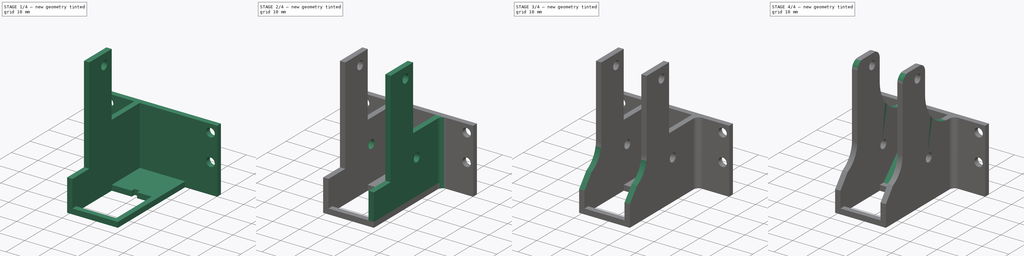
[diagram: build sequence overview — one tinted view per stage of 4, left to right]
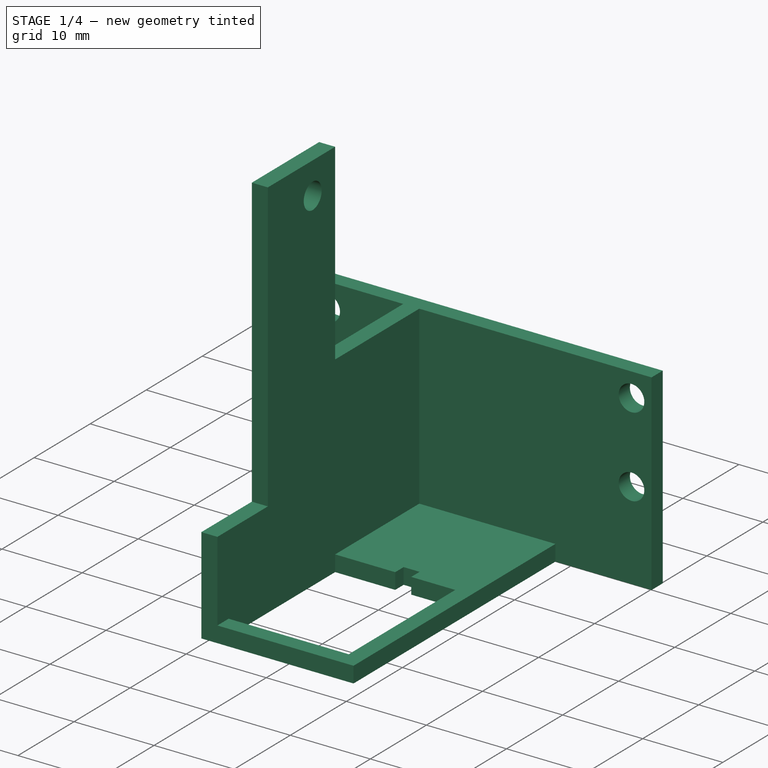
[diagram: stage 1 of 4 — iso view after this stage's code; geometry added in this stage tinted green]
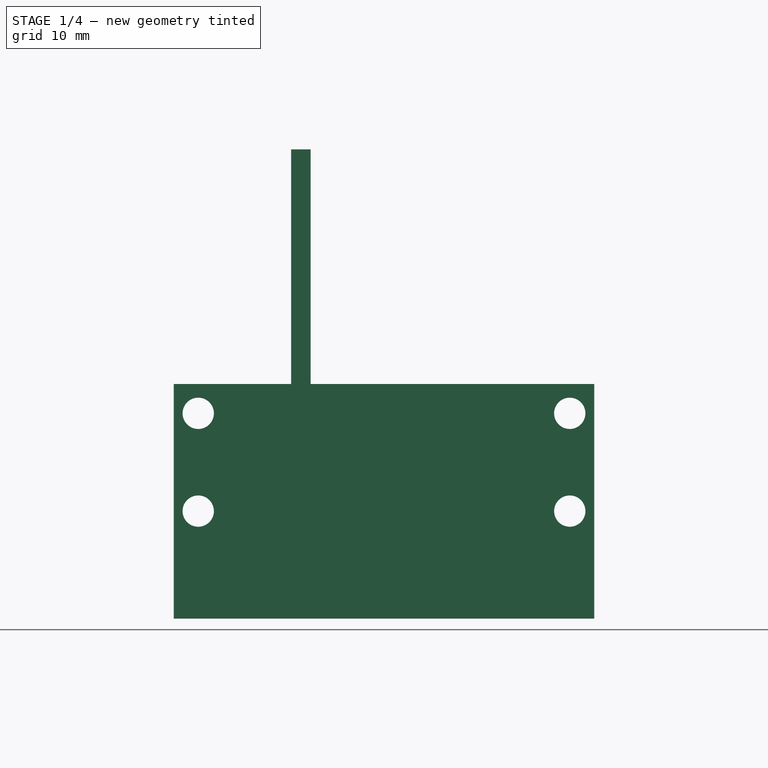
[diagram: stage 1 of 4 — front view after this stage's code; geometry added in this stage tinted green]
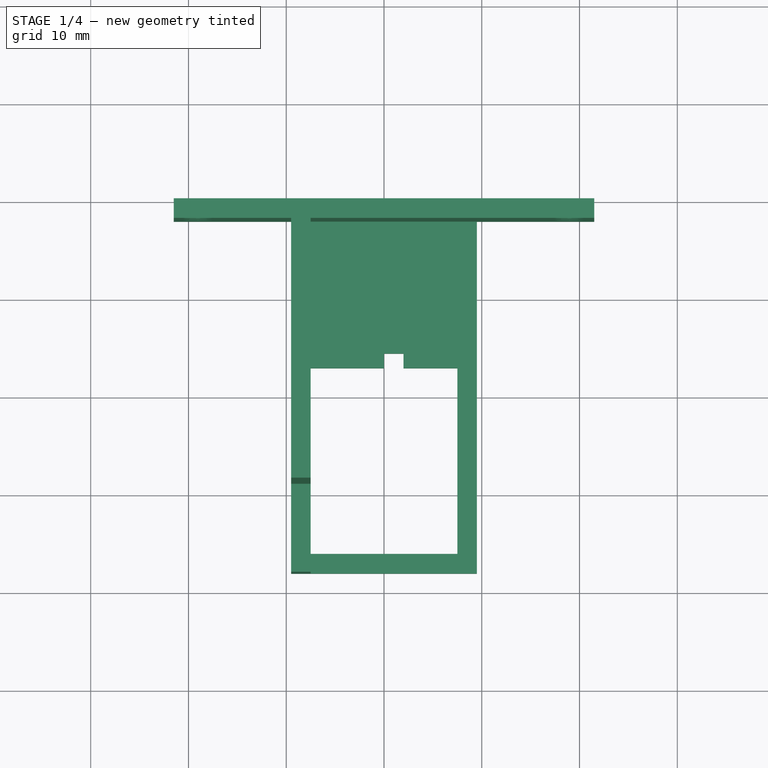
[diagram: stage 1 of 4 — top view after this stage's code; geometry added in this stage tinted green]
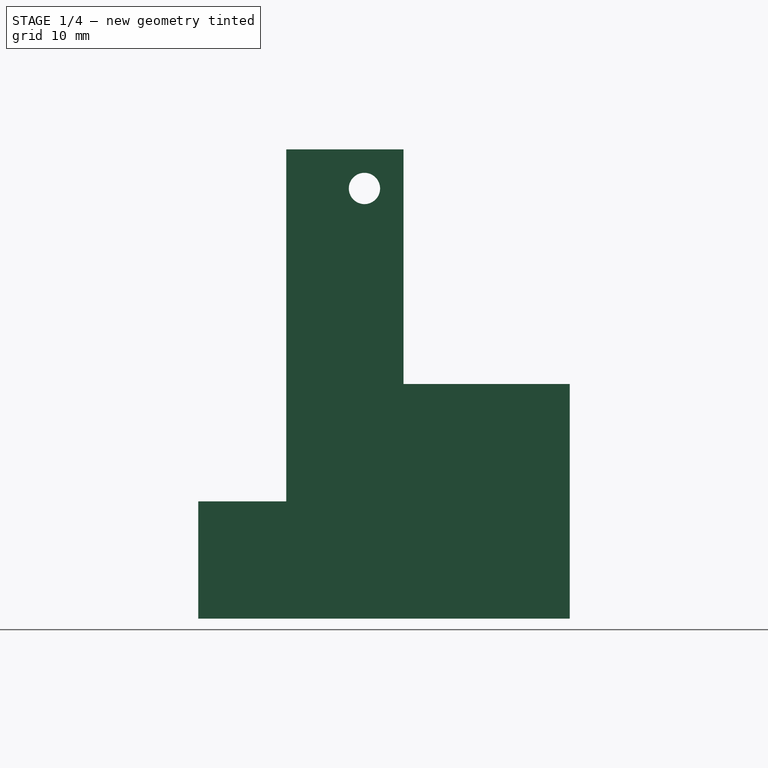
[diagram: stage 1 of 4 — right view after this stage's code; geometry added in this stage tinted green]
FCSTD DOCUMENT  (FreeCAD 0.18R14090 (Git))
Label: HotendClippingExtraFanTurbine
License: All rights reserved
LicenseURL: http://en.wikipedia.org/wiki/All_rights_reserved
objects: Sketcher::SketchObject×5, PartDesign::Pad×4, PartDesign::Fillet×4, PartDesign::Plane×2, PartDesign::Chamfer×2, PartDesign::Pocket×1, PartDesign::Body×1, App::Part×1
note: 24 computed .brp shape members not serialized (recipe doc carries the construction recipe); baked Part::Feature solids carry a one-line shape summary decoded from their .brp

FEATURE [Sketcher::SketchObject] Sketch  label="ClippingBaseSketch"
  MapMode = 5
  Placement = pos=(0,0,0) rot=(1,0,0;1.5708rad)
  Support = -> [XZ_Plane001]
  sketch-geometry (9):
    g0: LineSegment StartX=-21.5 StartY=0 StartZ=0 EndX=21.5 EndY=0 EndZ=0
    g1: LineSegment StartX=21.5 StartY=0 StartZ=0 EndX=21.5 EndY=24 EndZ=0
    g2: LineSegment StartX=21.5 StartY=24 StartZ=0 EndX=-21.5 EndY=24 EndZ=0
    g3: LineSegment StartX=-21.5 StartY=24 StartZ=0 EndX=-21.5 EndY=0 EndZ=0
    g4: Circle CenterX=-19 CenterY=21 CenterZ=0 NormalX=0 NormalY=0 NormalZ=1 AngleXU=0 Radius=1.6
    g5: Circle CenterX=-19 CenterY=11 CenterZ=0 NormalX=0 NormalY=0 NormalZ=1 AngleXU=0 Radius=1.6
    g6: Circle CenterX=19 CenterY=11 CenterZ=0 NormalX=0 NormalY=0 NormalZ=1 AngleXU=0 Radius=1.6
    g7: Circle CenterX=19 CenterY=21 CenterZ=0 NormalX=0 NormalY=0 NormalZ=1 AngleXU=0 Radius=1.6
    g8: LineSegment [constr] StartX=-19 StartY=21 StartZ=0 EndX=-19 EndY=11 EndZ=0
  constraints (23):
    c: Coincident(g0,g1)
    c: Coincident(g1,g2)
    c: Coincident(g2,g3)
    c: Coincident(g3,g0)
    c: Horizontal(g2)
    c: Vertical(g1)
    c: Vertical(g3)
    c: PointOnObject(g0,g-1)
    c: Symmetric(g0,g0,g-2)
    c: Distance(g2) = 43
    c: Distance(g3) = 24
    c: Equal(g4,g7)
    c: Equal(g7,g5)
    c: Equal(g5,g6)
    c: Radius(g4) = 1.6
    c: Coincident(g8,g4)
    c: Coincident(g8,g5)
    c: Vertical(g8)
    c: Distance(g8) = 10
    c: Symmetric(g5,g6,g-2)
    c: Symmetric(g4,g7,g-2)
    c: Distance(g4,g7) = 38
    c: Distance(g4,g2) = 3
FEATURE [PartDesign::Pad] Pad  label="ClippingBasePad"
  Length = 2
  Length2 = 100
  Placement = pos=(0,0,0) rot=(1,0,0;1.5708rad)
  Profile = -> Sketch
  Type = 0
FEATURE [Sketcher::SketchObject] Sketch001  label="TurbineClippingSketch"
  MapMode = 5
  Support = -> [XY_Plane001]
  sketch-geometry (12):
    g0: LineSegment StartX=-9.5 StartY=0 StartZ=0 EndX=9.5 EndY=0 EndZ=0
    g1: LineSegment StartX=9.5 StartY=0 StartZ=0 EndX=9.5 EndY=-38 EndZ=0
    g2: LineSegment StartX=-9.5 StartY=-38 StartZ=0 EndX=-9.5 EndY=0 EndZ=0
    g3: LineSegment StartX=-9.5 StartY=-38 StartZ=0 EndX=9.5 EndY=-38 EndZ=0
    g4: LineSegment StartX=7.5 StartY=-17 StartZ=0 EndX=7.5 EndY=-36 EndZ=0
    g5: LineSegment StartX=7.5 StartY=-36 StartZ=0 EndX=-7.5 EndY=-36 EndZ=0
    g6: LineSegment StartX=-7.5 StartY=-36 StartZ=0 EndX=-7.5 EndY=-17 EndZ=0
    g7: LineSegment StartX=0 StartY=-17 StartZ=0 EndX=0 EndY=-15.5 EndZ=0
    g8: LineSegment StartX=0 StartY=-15.5 StartZ=0 EndX=2 EndY=-15.5 EndZ=0
    g9: LineSegment StartX=2 StartY=-15.5 StartZ=0 EndX=2 EndY=-17 EndZ=0
    g10: LineSegment StartX=2 StartY=-17 StartZ=0 EndX=7.5 EndY=-17 EndZ=0
    g11: LineSegment StartX=0 StartY=-17 StartZ=0 EndX=-7.5 EndY=-17 EndZ=0
  constraints (34):
    c: Coincident(g0,g1)
    c: Coincident(g2,g0)
    c: Vertical(g1)
    c: Vertical(g2)
    c: PointOnObject(g0,g-1)
    c: Symmetric(g0,g0,g-2)
    c: Distance(g2) = 38
    c: Coincident(g3,g2)
    c: Coincident(g3,g1)
    c: Horizontal(g3)
    c: Distance(g3) = 19
    c: Coincident(g4,g5)
    c: Coincident(g5,g6)
    c: Vertical(g4)
    c: Vertical(g6)
    c: Distance(g5,g3) = 2
    c: Symmetric(g5,g4,g-2)
    c: Distance(g6,g2) = 2
    c: Distance(g4) = 19
    c: Vertical(g7)
    c: Coincident(g8,g7)
    c: Horizontal(g8)
    c: Coincident(g9,g8)
    c: Vertical(g9)
    c: Coincident(g10,g9)
    c: Coincident(g10,g4)
    c: Horizontal(g10)
    c: Coincident(g11,g7)
    c: Coincident(g11,g6)
    c: Horizontal(g11)
    c: Equal(g9,g7)
    c: Distance(g8) = 2
    c: Distance(g7) = 1.5
    c: Distance(g11) = 7.5
FEATURE [PartDesign::Pad] Pad001  label="TurbineClippingPad"
  BaseFeature = -> Pad
  Length = 2
  Length2 = 100
  Placement = pos=(0,0,0) rot=(1,0,0;1.5708rad)
  Profile = -> Sketch001
  Type = 0
FEATURE [PartDesign::Plane] DatumPlane  label="Wall1Plane"
  AttachmentOffset = pos=(0,0,-9.5) rot=(0,0,1;0rad)
  MapMode = 5
  Placement = pos=(-9.5,1e-12,-1e-12) rot=(0.57735,0.57735,0.57735;2.0944rad)
  Support = -> [YZ_Plane001]
FEATURE [PartDesign::Plane] DatumPlane001  label="Wall2Plane"
  AttachmentOffset = pos=(0,0,9.5) rot=(0,0,1;0rad)
  MapMode = 5
  Placement = pos=(9.5,-1e-12,1e-12) rot=(0.57735,0.57735,0.57735;2.0944rad)
  Support = -> [YZ_Plane001]
FEATURE [Sketcher::SketchObject] Sketch002  label="Wall1Sketch"
  ExternalGeometry = -> [Sketch001,Sketch]
  MapMode = 5
  Placement = pos=(-9.5,1e-12,-1e-12) rot=(0.57735,0.57735,0.57735;2.0944rad)
  Support = -> [DatumPlane]
  sketch-geometry (9):
    g0: LineSegment StartX=-8e-12 StartY=24 StartZ=0 EndX=-8e-12 EndY=-3e-12 EndZ=0
    g1: LineSegment StartX=-8e-12 StartY=-3e-12 StartZ=0 EndX=-38 EndY=-3e-12 EndZ=0
    g2: LineSegment StartX=-38 StartY=-3e-12 StartZ=0 EndX=-38 EndY=12 EndZ=0
    g3: LineSegment StartX=-38 StartY=12 StartZ=0 EndX=-29 EndY=12 EndZ=0
    g4: LineSegment StartX=-29 StartY=12 StartZ=0 EndX=-29 EndY=48 EndZ=0
    g5: Circle CenterX=-21 CenterY=44 CenterZ=0 NormalX=0 NormalY=0 NormalZ=1 AngleXU=0 Radius=1.6
    g6: LineSegment StartX=-29 StartY=48 StartZ=0 EndX=-17 EndY=48 EndZ=0
    g7: LineSegment StartX=-17 StartY=48 StartZ=0 EndX=-17 EndY=24 EndZ=0
    g8: LineSegment StartX=-17 StartY=24 StartZ=0 EndX=-8e-12 EndY=24 EndZ=0
  constraints (25):
    c: Coincident(g0,g1)
    c: Coincident(g1,g2)
    c: Horizontal(g1)
    c: Vertical(g0)
    c: Vertical(g2)
    c: Coincident(g1,g-3)
    c: Coincident(g3,g2)
    c: Horizontal(g3)
    c: Coincident(g4,g3)
    c: Vertical(g4)
    c: Coincident(g0,g-4)
    c: Distance(g5,g1) = 44
    c: Radius(g5) = 1.6
    c: DistanceX(g5,g-5) = 4
    c: Coincident(g6,g4)
    c: Horizontal(g6)
    c: Coincident(g7,g6)
    c: Vertical(g7)
    c: Coincident(g8,g7)
    c: Coincident(g8,g0)
    c: Horizontal(g8)
    c: Distance(g2) = 12
    c: Distance(g-5,g4) = 12
    c: Distance(g4,g1) = 48
    c: Distance(g8) = 17
FEATURE [PartDesign::Pad] Pad002  label="Wall1Pad"
  BaseFeature = -> Pad001
  Length = 2
  Length2 = 100
  Placement = pos=(0,0,0) rot=(1,0,0;1.5708rad)
  Profile = -> Sketch002
  Type = 0
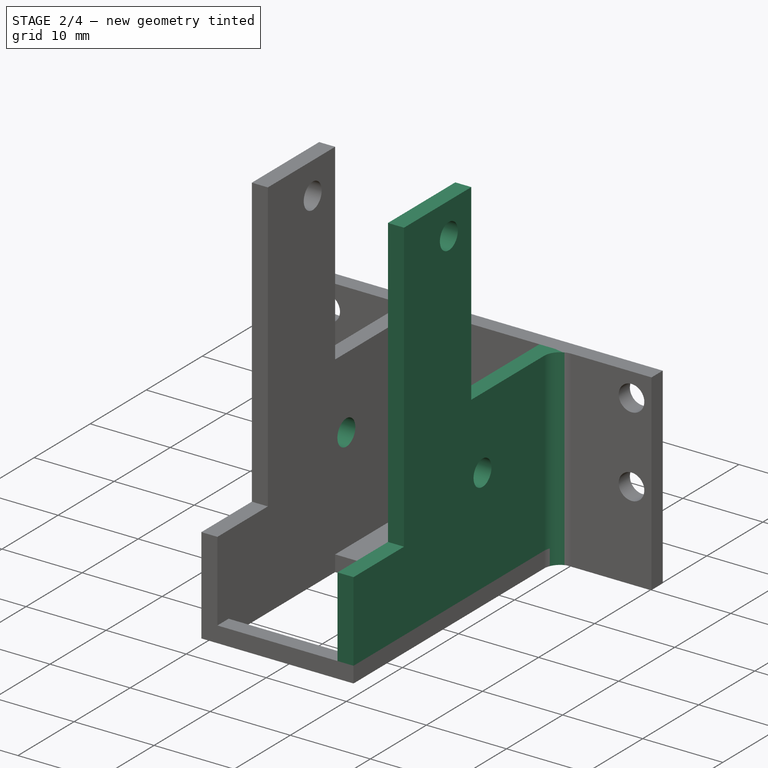
[diagram: stage 2 of 4 — iso view after this stage's code; geometry added in this stage tinted green]
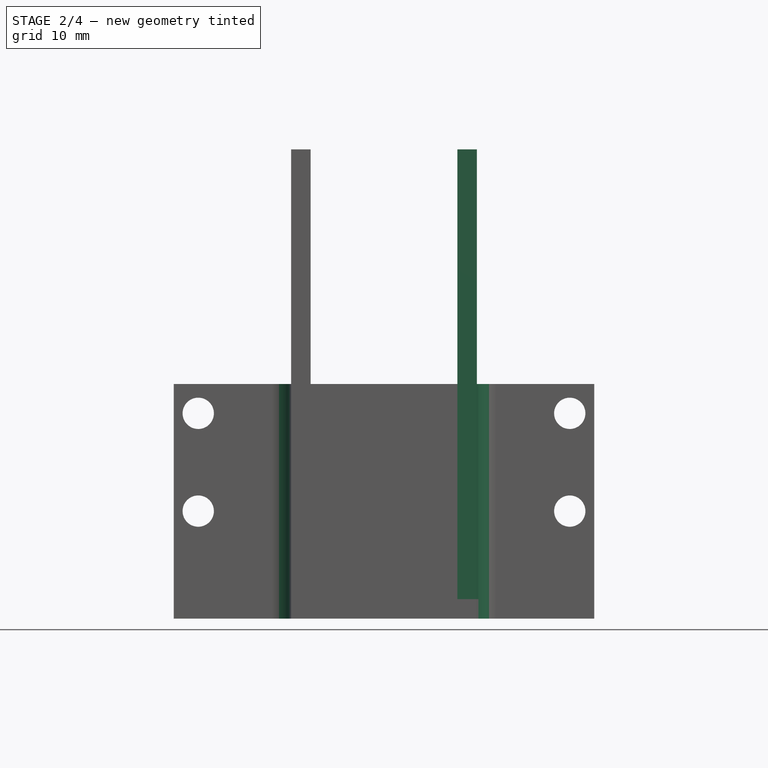
[diagram: stage 2 of 4 — front view after this stage's code; geometry added in this stage tinted green]
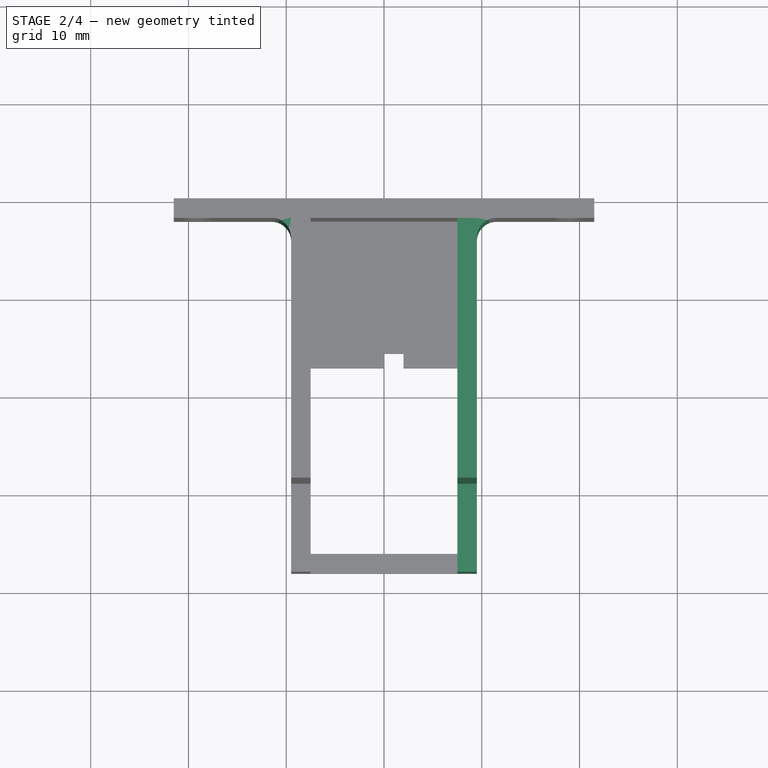
[diagram: stage 2 of 4 — top view after this stage's code; geometry added in this stage tinted green]
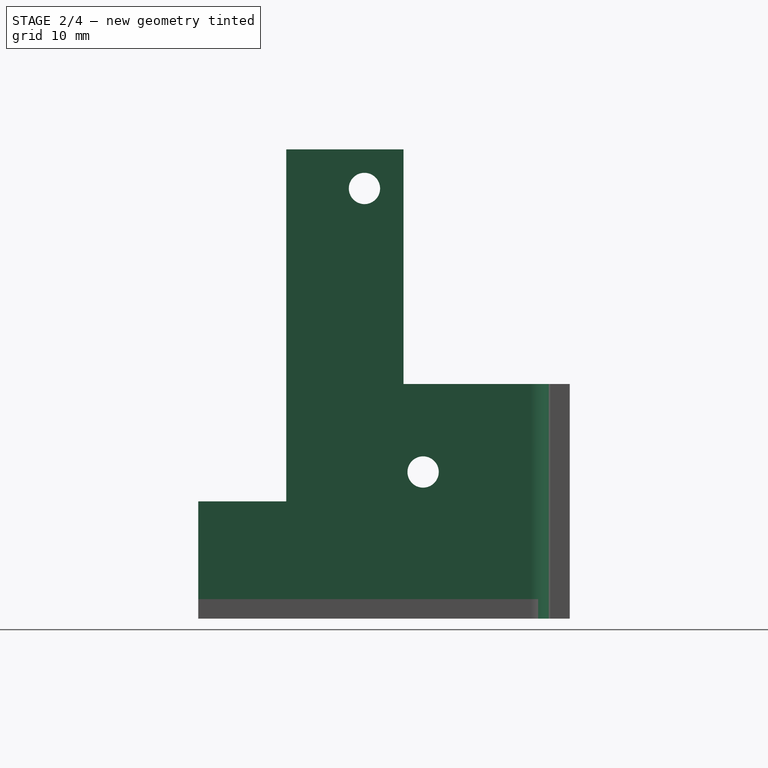
[diagram: stage 2 of 4 — right view after this stage's code; geometry added in this stage tinted green]
FEATURE [Sketcher::SketchObject] Sketch004  label="ExtraClipSketch"
  MapMode = 5
  Placement = pos=(0,0,0) rot=(0.57735,0.57735,0.57735;2.0944rad)
  Support = -> [YZ_Plane001]
  sketch-geometry (1):
    g0: Circle CenterX=-15 CenterY=15 CenterZ=0 NormalX=0 NormalY=0 NormalZ=1 AngleXU=0 Radius=1.6
  constraints (3):
    c: Radius(g0) = 1.6
    c: DistanceX(g-2,g0) = -15
    c: DistanceY(g-1,g0) = 15
FEATURE [Sketcher::SketchObject] Sketch005  label="Wall2Sketch"
  ExternalGeometry = -> [Sketch001,Sketch]
  MapMode = 5
  Placement = pos=(9.5,-1e-12,1e-12) rot=(0.57735,0.57735,0.57735;2.0944rad)
  Support = -> [DatumPlane001]
  sketch-geometry (9):
    g0: LineSegment StartX=-8e-12 StartY=24 StartZ=0 EndX=-8e-12 EndY=-3e-12 EndZ=0
    g1: LineSegment StartX=-8e-12 StartY=-3e-12 StartZ=0 EndX=-38 EndY=-3e-12 EndZ=0
    g2: LineSegment StartX=-38 StartY=-3e-12 StartZ=0 EndX=-38 EndY=12 EndZ=0
    g3: LineSegment StartX=-38 StartY=12 StartZ=0 EndX=-29 EndY=12 EndZ=0
    g4: LineSegment StartX=-29 StartY=12 StartZ=0 EndX=-29 EndY=48 EndZ=0
    g5: Circle CenterX=-21 CenterY=44 CenterZ=0 NormalX=0 NormalY=0 NormalZ=1 AngleXU=0 Radius=1.6
    g6: LineSegment StartX=-29 StartY=48 StartZ=0 EndX=-17 EndY=48 EndZ=0
    g7: LineSegment StartX=-17 StartY=48 StartZ=0 EndX=-17 EndY=24 EndZ=0
    g8: LineSegment StartX=-17 StartY=24 StartZ=0 EndX=-8e-12 EndY=24 EndZ=0
  constraints (25):
    c: Coincident(g0,g1)
    c: Coincident(g1,g2)
    c: Horizontal(g1)
    c: Vertical(g0)
    c: Vertical(g2)
    c: Coincident(g1,g-3)
    c: Coincident(g3,g2)
    c: Horizontal(g3)
    c: Coincident(g4,g3)
    c: Vertical(g4)
    c: Coincident(g0,g-4)
    c: Distance(g5,g1) = 44
    c: Radius(g5) = 1.6
    c: DistanceX(g5,g-5) = 4
    c: Coincident(g6,g4)
    c: Horizontal(g6)
    c: Coincident(g7,g6)
    c: Vertical(g7)
    c: Coincident(g8,g7)
    c: Coincident(g8,g0)
    c: Horizontal(g8)
    c: Distance(g2) = 12
    c: Distance(g-5,g4) = 12
    c: Distance(g4,g1) = 48
    c: Distance(g8) = 17
FEATURE [PartDesign::Pad] Pad003  label="Wall2Pad"
  BaseFeature = -> Pad002
  Length = 2
  Length2 = 100
  Placement = pos=(0,0,0) rot=(1,0,0;1.5708rad)
  Profile = -> Sketch005
  Reversed = true
  Type = 0
FEATURE [PartDesign::Pocket] Pocket  label="ExtraClipPocket"
  BaseFeature = -> Pad003
  Length = 5
  Length2 = 100
  Midplane = true
  Placement = pos=(0,0,0) rot=(1,0,0;1.5708rad)
  Profile = -> Sketch004
  Type = 1
FEATURE [PartDesign::Fillet] Fillet  label="CornersFillet1"
  Base = -> Pocket [Edge151,Edge15]
  BaseFeature = -> Pocket
  Placement = pos=(0,0,0) rot=(1,0,0;1.5708rad)
  Radius = 2
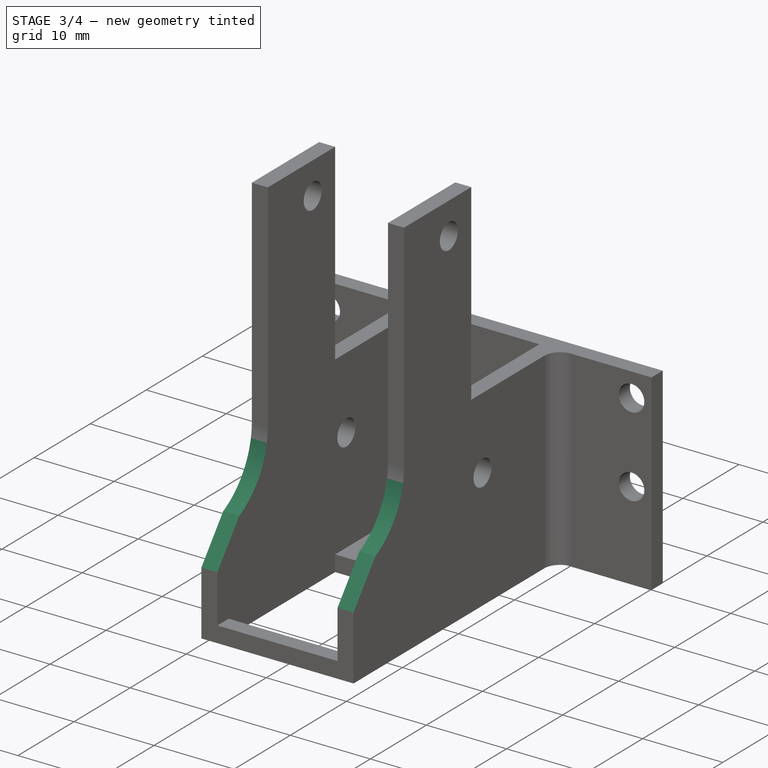
[diagram: stage 3 of 4 — iso view after this stage's code; geometry added in this stage tinted green]
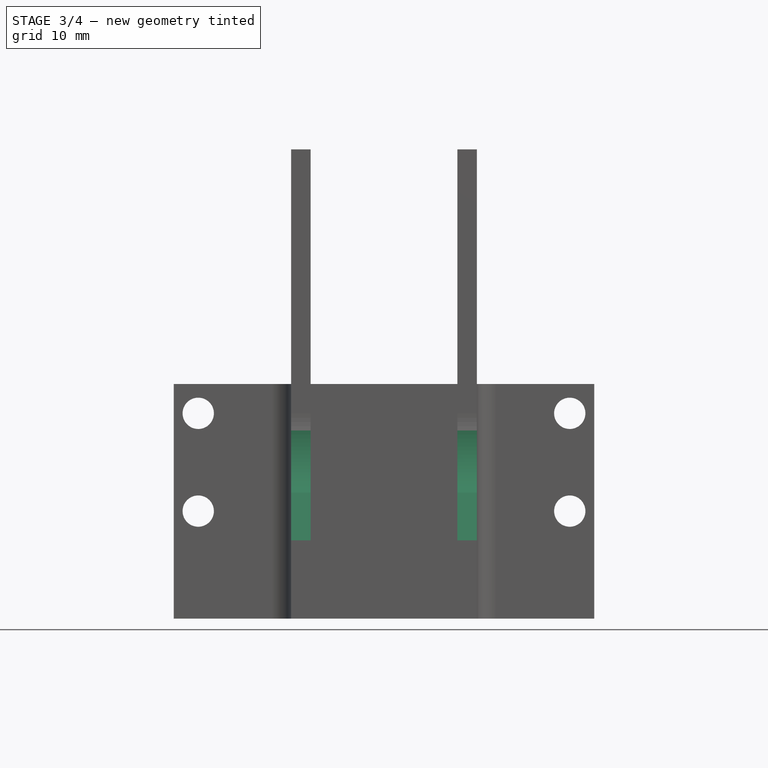
[diagram: stage 3 of 4 — front view after this stage's code; geometry added in this stage tinted green]
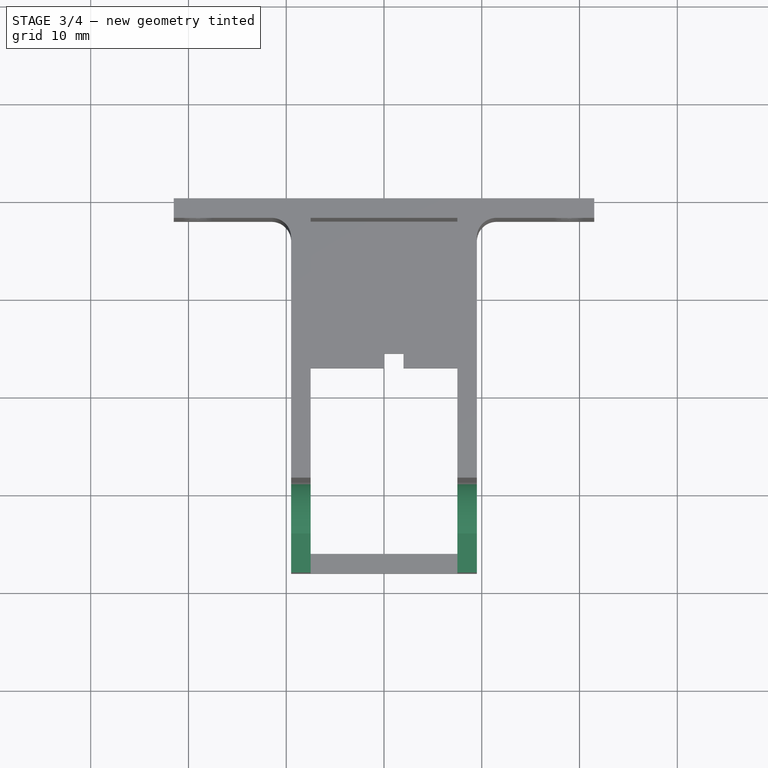
[diagram: stage 3 of 4 — top view after this stage's code; geometry added in this stage tinted green]
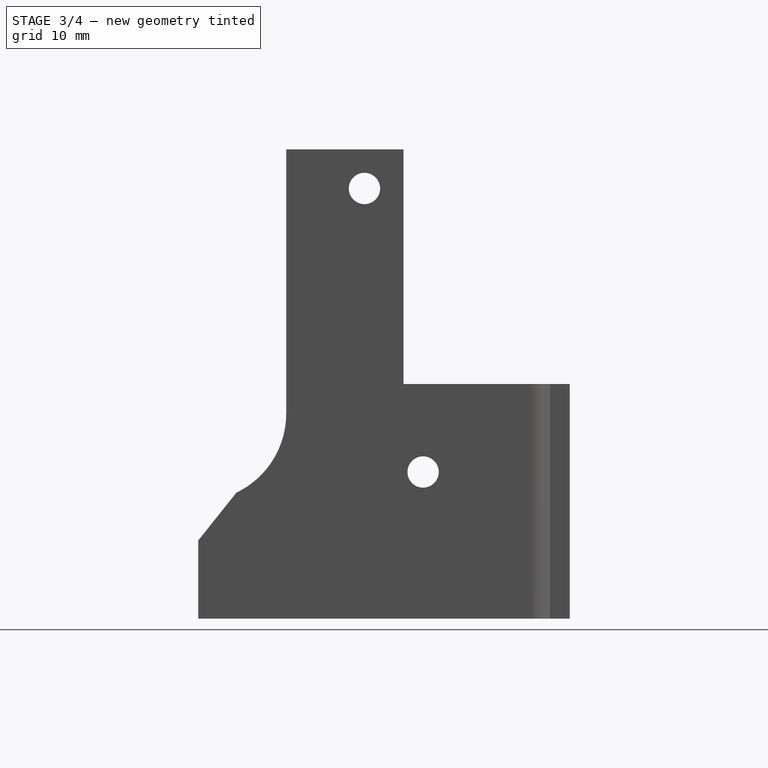
[diagram: stage 3 of 4 — right view after this stage's code; geometry added in this stage tinted green]
FEATURE [PartDesign::Fillet] Fillet001  label="CornersFillet2"
  Base = -> Fillet [Edge144,Edge72]
  BaseFeature = -> Fillet
  Placement = pos=(0,0,0) rot=(1,0,0;1.5708rad)
  Radius = 8.99
FEATURE [PartDesign::Chamfer] Chamfer  label="CornersChamfer1"
  Base = -> Fillet001 [Edge141,Edge19]
  BaseFeature = -> Fillet001
  Placement = pos=(0,0,0) rot=(1,0,0;1.5708rad)
  Size = 4
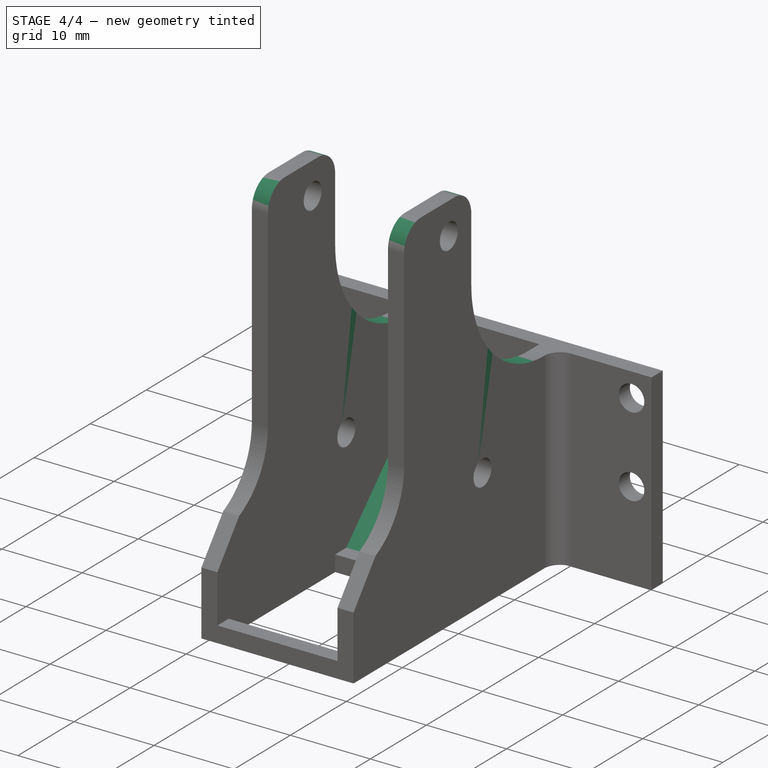
[diagram: stage 4 of 4 — iso view after this stage's code; geometry added in this stage tinted green]
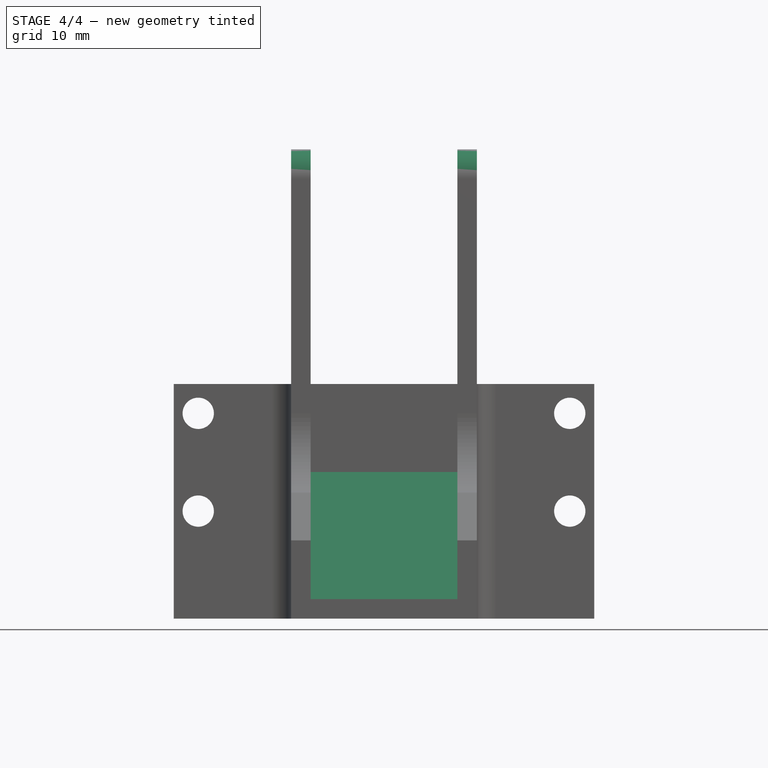
[diagram: stage 4 of 4 — front view after this stage's code; geometry added in this stage tinted green]
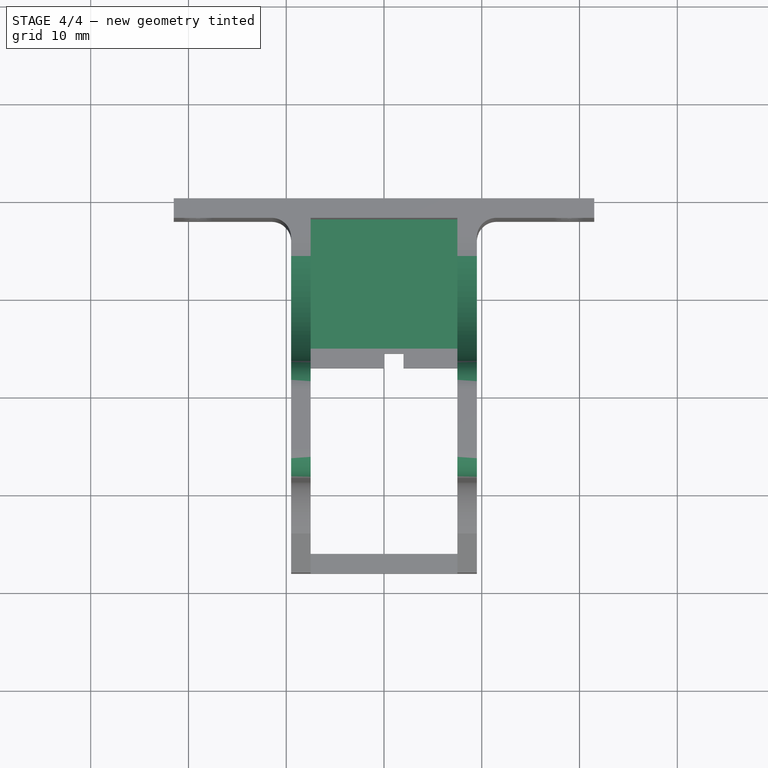
[diagram: stage 4 of 4 — top view after this stage's code; geometry added in this stage tinted green]
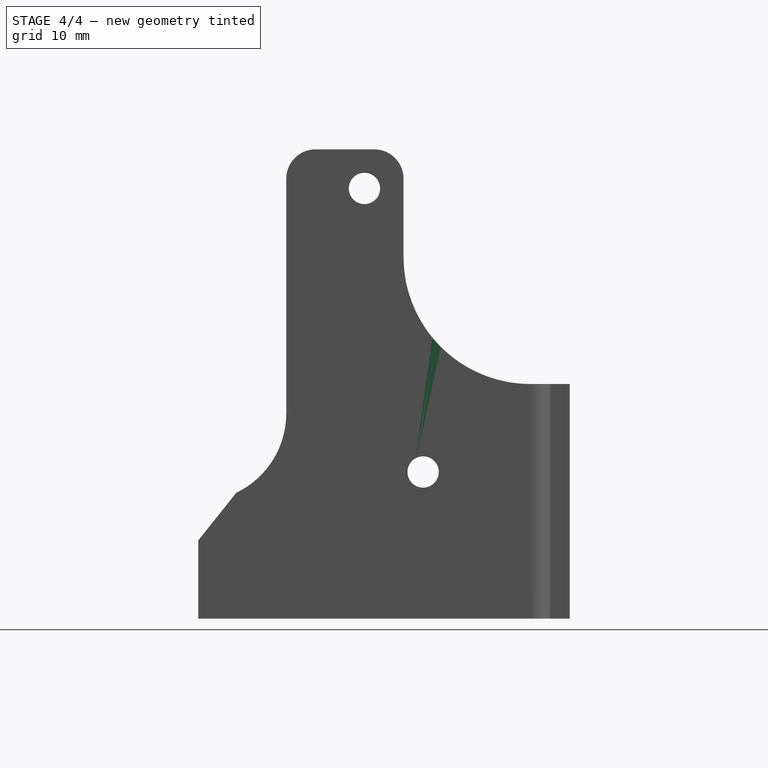
[diagram: stage 4 of 4 — right view after this stage's code; geometry added in this stage tinted green]
FEATURE [PartDesign::Chamfer] Chamfer001  label="StiffenerChamfer"
  Base = -> Chamfer [Edge67]
  BaseFeature = -> Chamfer
  Placement = pos=(0,0,0) rot=(1,0,0;1.5708rad)
  Size = 13
FEATURE [PartDesign::Fillet] Fillet002  label="StiffenerFillet"
  Base = -> Chamfer001 [Edge101,Edge34]
  BaseFeature = -> Chamfer001
  Placement = pos=(0,0,0) rot=(1,0,0;1.5708rad)
  Radius = 13
FEATURE [PartDesign::Fillet] Fillet003  label="CornersFillet3"
  Base = -> Fillet002 [Edge123,Edge29,Edge26,Edge122]
  BaseFeature = -> Fillet002
  Placement = pos=(0,0,0) rot=(1,0,0;1.5708rad)
  Radius = 3
FEATURE [PartDesign::Body] Body  label="TurbineClippingBody"
  Group = -> [Sketch,Pad,Sketch001,Pad001,DatumPlane,DatumPlane001,Sketch002,Pad002,Pad003,Sketch005,Sketch004,Pocket,Fillet,Fillet001,Chamfer,Chamfer001,Fillet002,Fillet003]
  Origin = -> Origin001
  Tip = -> Fillet003
FEATURE [App::Part] Part  label="TurbineClippingPart"
  Group = -> [Body]
  License = CC BY 3.0
  LicenseURL = http://creativecommons.org/licenses/by/3.0/
  Origin = -> Origin
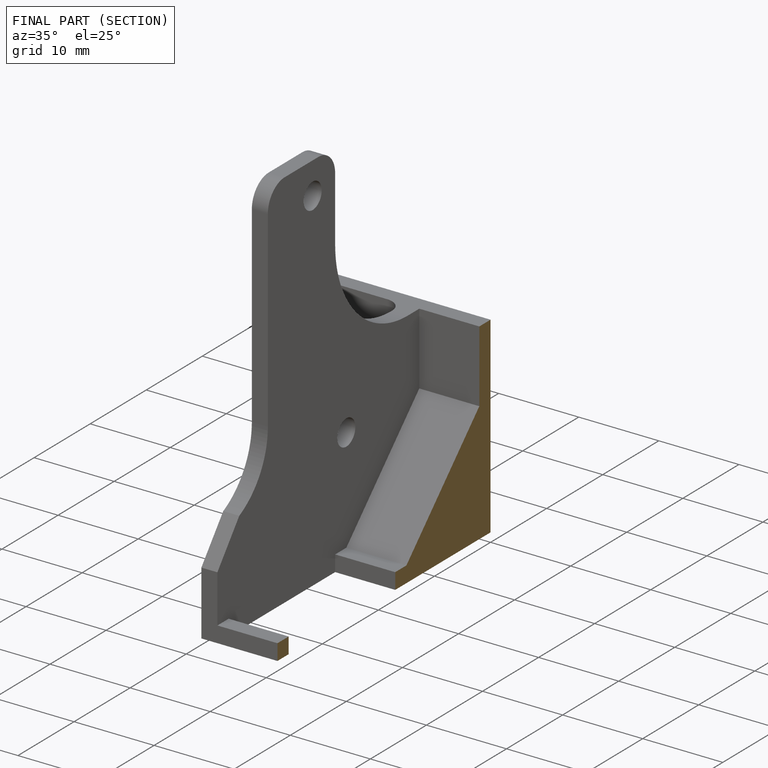
[diagram: finished part — half-section view (interior)]
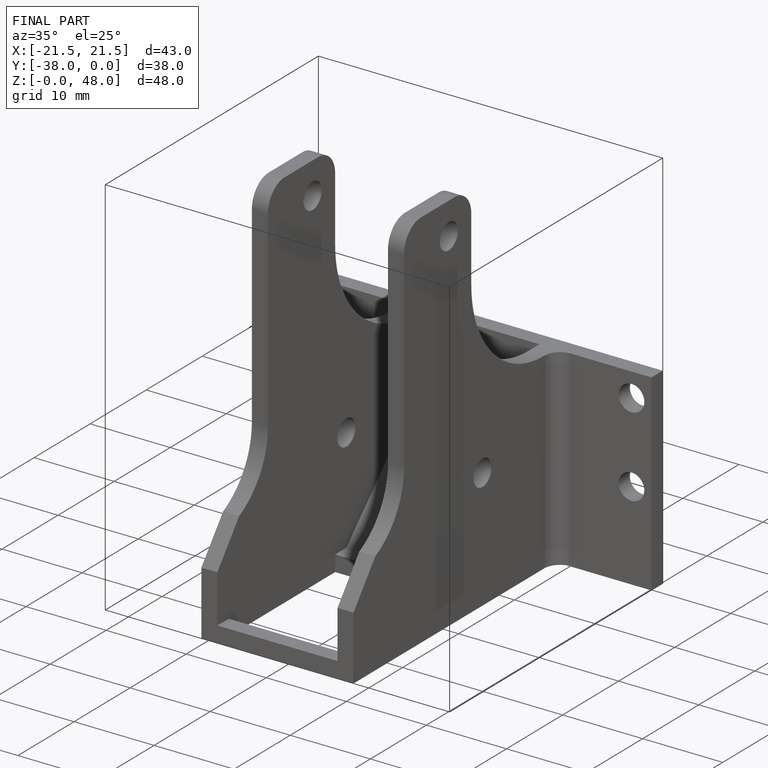
[diagram: finished part — iso view with bounding-box wireframe]
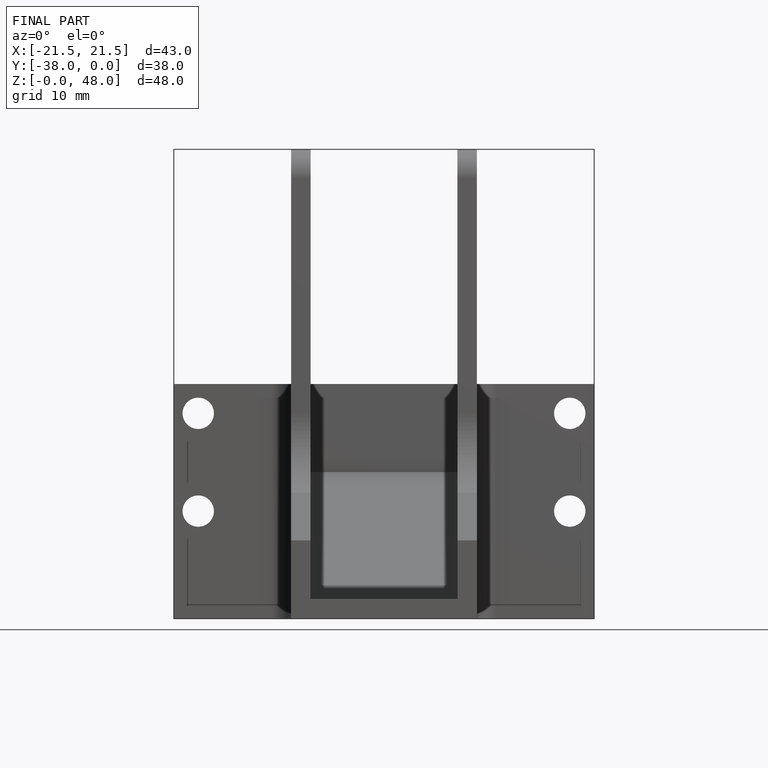
[diagram: finished part — front view with bounding-box wireframe]
